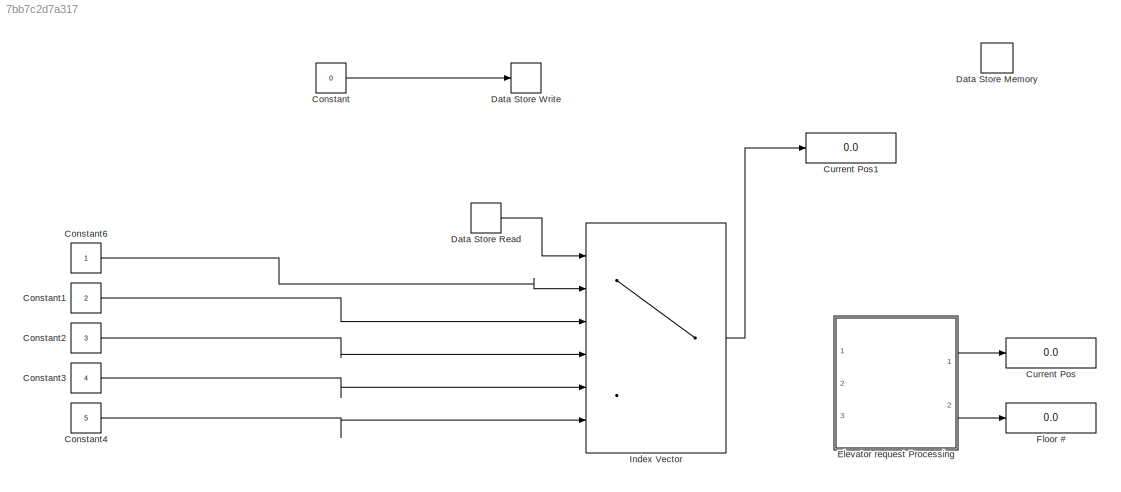
MODEL slx_7bb7c2d7a317
KIND model
BLOCK [Constant] Constant
  Value = 0
BLOCK [Constant] Constant1
  Value = 2
BLOCK [Constant] Constant2
  Value = 3
BLOCK [Constant] Constant3
  Value = 4
BLOCK [Constant] Constant4
  Value = 5
BLOCK [Constant] Constant6
BLOCK [Display] Current Pos
  Decimation = 1
  Ports = [1]
BLOCK [Display] Current Pos1
  Decimation = 1
  Ports = [1]
BLOCK [DataStoreMemory] Data Store Memory
  ReadBeforeWriteMsg = warning
  WriteAfterReadMsg = warning
  WriteAfterWriteMsg = warning
BLOCK [DataStoreRead] Data Store Read
  Ports = [0, 1]
BLOCK [DataStoreWrite] Data Store Write
  Ports = [1]
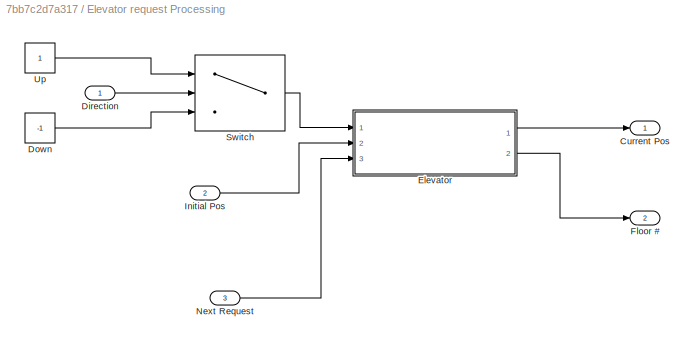
BLOCK [SubSystem] Elevator request Processing
  Ports = [3, 2]
  RequestExecContextInheritance = off
BLOCK [Outport] Elevator request Processing/Current Pos
  IconDisplay = Port number
BLOCK [Inport] Elevator request Processing/Direction
  IconDisplay = Port number
BLOCK [Constant] Elevator request Processing/Down
  Value = -1
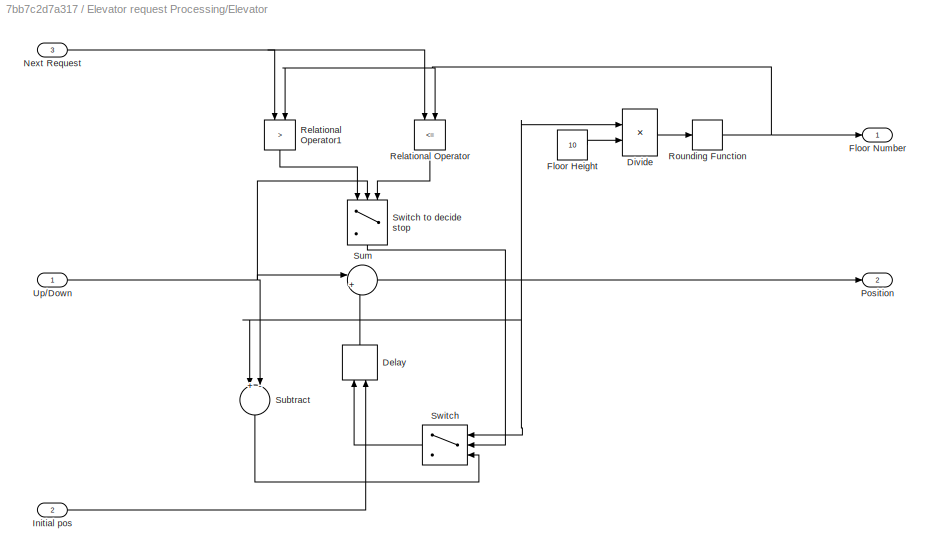
BLOCK [SubSystem] Elevator request Processing/Elevator
  Ports = [3, 2]
  RequestExecContextInheritance = off
BLOCK [Delay] Elevator request Processing/Elevator/Delay
  DelayLength = 10000
  InitialCondition = 2
  InitialConditionSource = Input port
  InputPortMap = u0,p4
  Ports = [2, 1]
  SampleTime = .00001
BLOCK [Product] Elevator request Processing/Elevator/Divide
  InputSameDT = off
  Inputs = */
  LockScale = on
  OutDataTypeStr = Inherit: Inherit via internal rule
  Ports = [2, 1]
  RndMeth = Nearest
  SaturateOnIntegerOverflow = off
BLOCK [Constant] Elevator request Processing/Elevator/Floor Height
  Value = 10
BLOCK [Outport] Elevator request Processing/Elevator/Floor Number
  IconDisplay = Port number
BLOCK [Inport] Elevator request Processing/Elevator/Initial pos
  IconDisplay = Port number
  Port = 2
BLOCK [Inport] Elevator request Processing/Elevator/Next Request
  IconDisplay = Port number
  Port = 3
BLOCK [Outport] Elevator request Processing/Elevator/Position
  IconDisplay = Port number
  Port = 2
BLOCK [RelationalOperator] Elevator request Processing/Elevator/Relational Operator
  InputSameDT = off
  Operator = <=
  OutDataTypeStr = boolean
  Ports = [2, 1]
BLOCK [RelationalOperator] Elevator request Processing/Elevator/Relational Operator1
  InputSameDT = off
  Operator = >
  OutDataTypeStr = boolean
  Ports = [2, 1]
BLOCK [Rounding] Elevator request Processing/Elevator/Rounding Function
BLOCK [Sum] Elevator request Processing/Elevator/Subtract
  InputSameDT = off
  Inputs = +-
  OutDataTypeStr = Inherit: Inherit via internal rule
  Ports = [2, 1]
  SaturateOnIntegerOverflow = off
BLOCK [Sum] Elevator request Processing/Elevator/Sum
  IconShape = round
  InputSameDT = off
  Inputs = |++
  OutDataTypeStr = Inherit: Inherit via internal rule
  Ports = [2, 1]
  SaturateOnIntegerOverflow = off
BLOCK [Switch] Elevator request Processing/Elevator/Switch
  Criteria = u2 ~= 0
  InputSameDT = off
  SaturateOnIntegerOverflow = off
BLOCK [Switch] Elevator request Processing/Elevator/Switch to decide stop
  InputSameDT = off
  SaturateOnIntegerOverflow = off
  Threshold = 1
BLOCK [Inport] Elevator request Processing/Elevator/Up//Down
  IconDisplay = Port number
BLOCK [Outport] Elevator request Processing/Floor #
  IconDisplay = Port number
  Port = 2
BLOCK [Inport] Elevator request Processing/Initial Pos
  IconDisplay = Port number
  Port = 2
BLOCK [Inport] Elevator request Processing/Next Request
  IconDisplay = Port number
  Port = 3
BLOCK [Switch] Elevator request Processing/Switch
  Criteria = u2 ~= 0
  InputSameDT = off
  SaturateOnIntegerOverflow = off
BLOCK [Constant] Elevator request Processing/Up
BLOCK [Display] Floor #
  Decimation = 1
  Ports = [1]
BLOCK [MultiPortSwitch] Index Vector
  DataPortOrder = Zero-based contiguous
  InputSameDT = off
  Inputs = 5
  Ports = [6, 1]
  SaturateOnIntegerOverflow = off
  zeroidx = on
LINE Constant1:1 -> Index Vector:3
LINE Constant2:1 -> Index Vector:4
LINE Constant3:1 -> Index Vector:5
LINE Constant4:1 -> Index Vector:6
LINE Constant6:1 -> Index Vector:2
LINE Constant:1 -> Data Store Write:1
LINE Data Store Read:1 -> Index Vector:1
LINE Elevator request Processing/Direction:1 -> Elevator request Processing/Switch:2
LINE Elevator request Processing/Down:1 -> Elevator request Processing/Switch:3
LINE Elevator request Processing/Elevator/Delay:1 -> Elevator request Processing/Elevator/Sum:2
LINE Elevator request Processing/Elevator/Divide:1 -> Elevator request Processing/Elevator/Rounding Function:1
LINE Elevator request Processing/Elevator/Floor Height:1 -> Elevator request Processing/Elevator/Divide:2
LINE Elevator request Processing/Elevator/Initial pos:1 -> Elevator request Processing/Elevator/Delay:2
NET Elevator request Processing/Elevator/Next Request:1 -> Elevator request Processing/Elevator/Relational Operator1:1, Elevator request Processing/Elevator/Relational Operator:1
LINE Elevator request Processing/Elevator/Relational Operator1:1 -> Elevator request Processing/Elevator/Switch to decide stop:1
LINE Elevator request Processing/Elevator/Relational Operator:1 -> Elevator request Processing/Elevator/Switch to decide stop:3
NET Elevator request Processing/Elevator/Rounding Function:1 -> Elevator request Processing/Elevator/Floor Number:1, Elevator request Processing/Elevator/Relational Operator1:2, Elevator request Processing/Elevator/Relational Operator:2
LINE Elevator request Processing/Elevator/Subtract:1 -> Elevator request Processing/Elevator/Switch:3
NET Elevator request Processing/Elevator/Sum:1 -> Elevator request Processing/Elevator/Divide:1, Elevator request Processing/Elevator/Position:1, Elevator request Processing/Elevator/Subtract:1, Elevator request Processing/Elevator/Switch:1
LINE Elevator request Processing/Elevator/Switch to decide stop:1 -> Elevator request Processing/Elevator/Switch:2
LINE Elevator request Processing/Elevator/Switch:1 -> Elevator request Processing/Elevator/Delay:1
NET Elevator request Processing/Elevator/Up//Down:1 -> Elevator request Processing/Elevator/Subtract:2, Elevator request Processing/Elevator/Sum:1, Elevator request Processing/Elevator/Switch to decide stop:2
LINE Elevator request Processing/Elevator:1 -> Elevator request Processing/Current Pos:1
LINE Elevator request Processing/Elevator:2 -> Elevator request Processing/Floor #:1
LINE Elevator request Processing/Initial Pos:1 -> Elevator request Processing/Elevator:2
LINE Elevator request Processing/Next Request:1 -> Elevator request Processing/Elevator:3
LINE Elevator request Processing/Switch:1 -> Elevator request Processing/Elevator:1
LINE Elevator request Processing/Up:1 -> Elevator request Processing/Switch:1
LINE Elevator request Processing:1 -> Current Pos:1
LINE Elevator request Processing:2 -> Floor #:1
LINE Index Vector:1 -> Current Pos1:1
note: NET lines group one-source signal fan-out (src -> all destinations, sorted); 1:1 wires keep LINE
